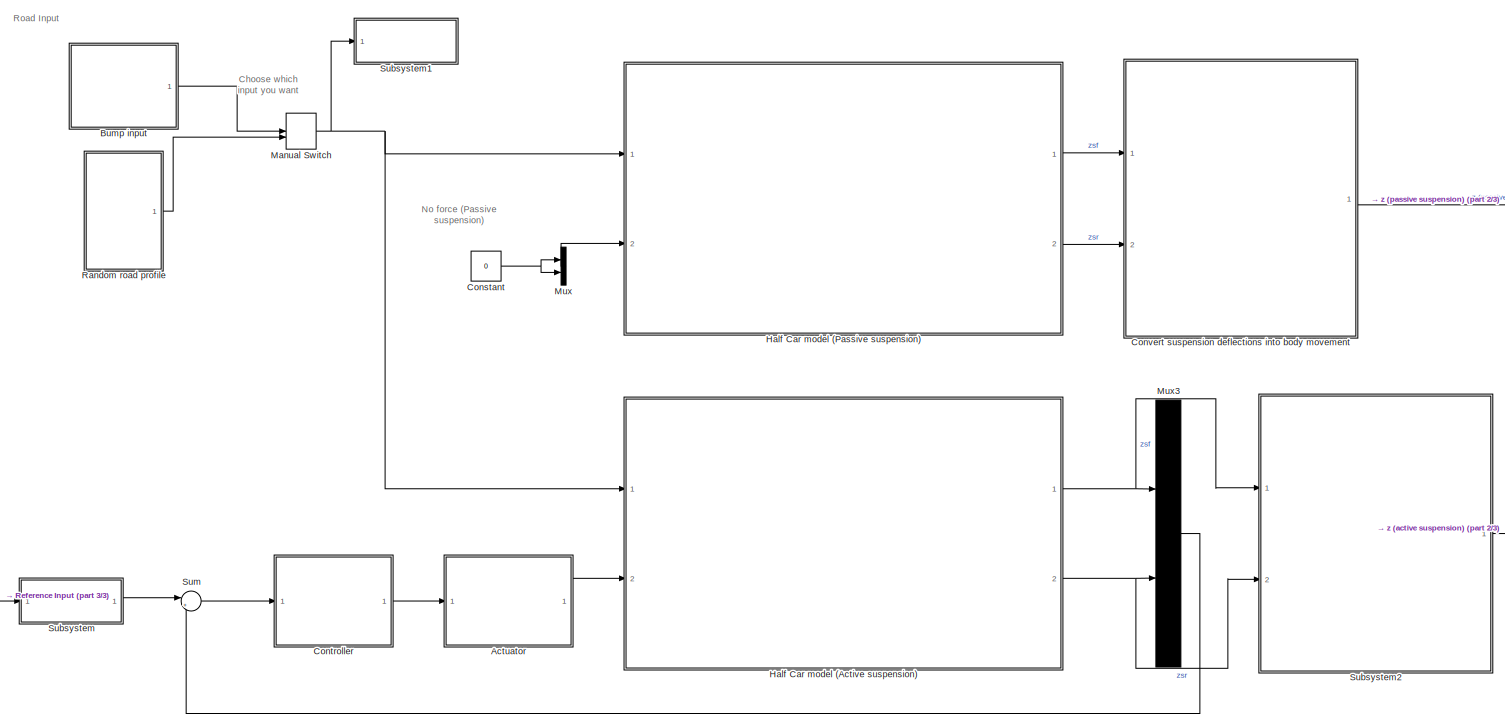
[diagram: root canvas - part 1/3, center side, full height]
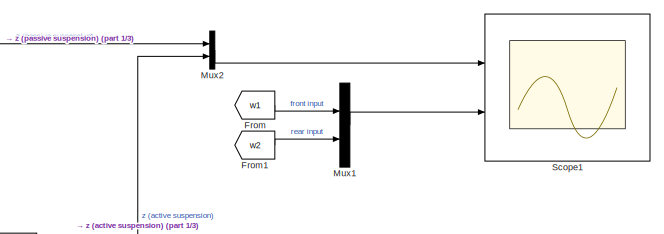
[diagram: root canvas - part 2/3, middle right region]
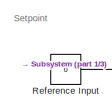
[diagram: root canvas - part 3/3, bottom left region]
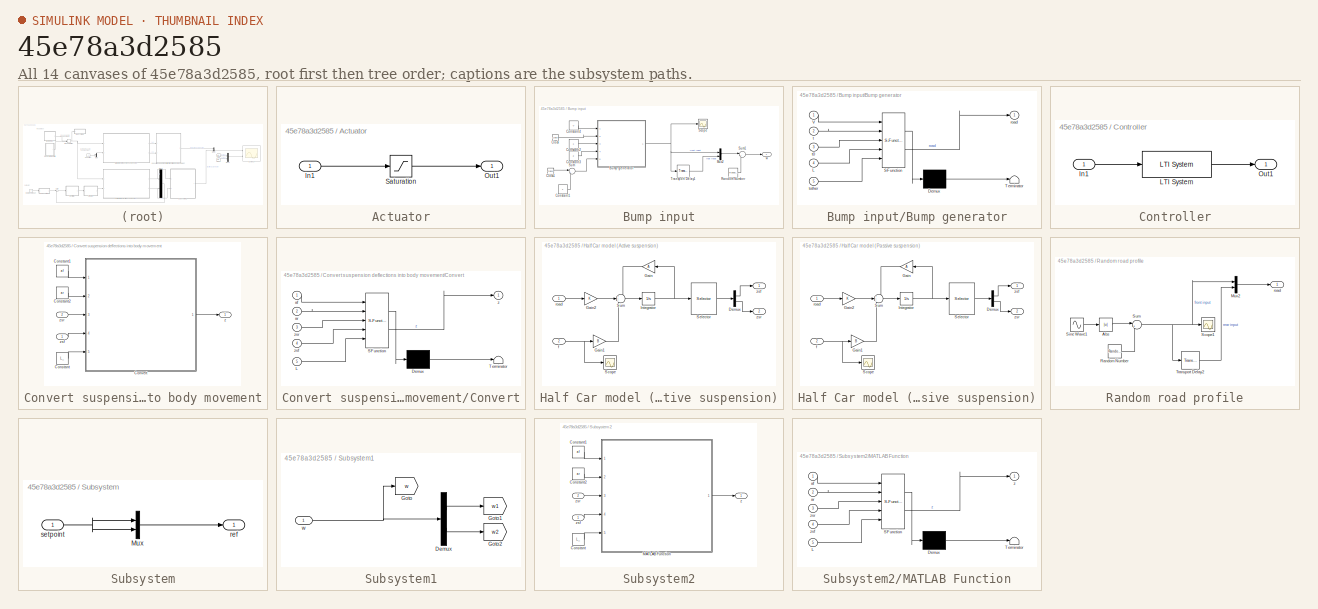
[diagram: thumbnail index - all 14 canvases of the model, root first then tree order]
MODEL slx_45e78a3d2585
KIND model
CONFIG AbsTol = auto
CONFIG EnableMultiTasking = off
CONFIG FixedStep = auto
CONFIG MaxStep = auto
CONFIG MinStep = auto
CONFIG RelTol = 1e-3
CONFIG SampleTimeConstraint = Unconstrained
CONFIG SolverName = VariableStepAuto
CONFIG StartTime = 0.0
CONFIG StopTime = 10
BLOCK [SubSystem] Actuator
  Ports = [1, 1]
  RequestExecContextInheritance = off
BLOCK [Inport] Actuator/In1
BLOCK [Outport] Actuator/Out1
BLOCK [Saturate] Actuator/Saturation
  LowerLimit = -inf
  UpperLimit = inf
BLOCK [SubSystem] Bump input
  Ports = [0, 1]
  RequestExecContextInheritance = off
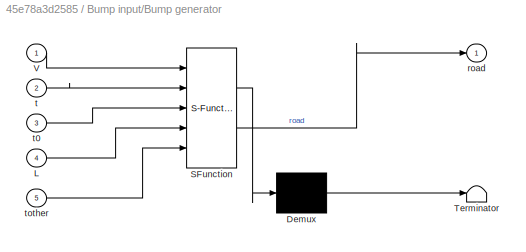
BLOCK [SubSystem] Bump input/Bump generator
  ErrorFcn = Stateflow.Translate.translate
  PermitHierarchicalResolution = ExplicitOnly
  Ports = [5, 1]
  RequestExecContextInheritance = off
  SFBlockType = MATLAB Function
  TreatAsAtomicUnit = on
BLOCK [Demux] Bump input/Bump generator/ Demux 
  Outputs = 1
  Ports = [1, 1]
BLOCK [S-Function] Bump input/Bump generator/ SFunction 
  EnableBusSupport = on
  FunctionName = sf_sfun
  PortCounts = [5 2]
  Ports = [5, 2]
  SFcnIsStateOwnerBlock = off
  SFunctionDeploymentMode = off
  Tag = Stateflow S-Function 2
BLOCK [Terminator] Bump input/Bump generator/ Terminator 
BLOCK [Inport] Bump input/Bump generator/L
  Port = 4
BLOCK [Inport] Bump input/Bump generator/V
BLOCK [Outport] Bump input/Bump generator/road
BLOCK [Inport] Bump input/Bump generator/t
  Port = 2
BLOCK [Inport] Bump input/Bump generator/t0
  Port = 3
BLOCK [Inport] Bump input/Bump generator/tother
  Port = 5
BLOCK [Clock] Bump input/Clock
BLOCK [Clock] Bump input/Clock1
BLOCK [Constant] Bump input/Constant1
BLOCK [Constant] Bump input/Constant2
BLOCK [Constant] Bump input/Constant3
  Value = 2
BLOCK [Constant] Bump input/Constant4
  Value = V
BLOCK [Mux] Bump input/Mux2
  DisplayOption = bar
  Inputs = 2
  Ports = [2, 1]
BLOCK [RandomNumber] Bump input/Random Number
  Commented = on
  SampleTime = 0.1
  Variance = 0.0001
BLOCK [Scope] Bump input/Scope
  Floating = off
  NumInputPorts = 1
  Ports = [1]
  ScopeSpecificationString = Simulink.scopes.TimeScopeBlockCfg('CurrentConfiguration', extmgr.ConfigurationSet(extmgr.Configuration('Core','General UI',true),extmgr.Configuration('Core','Source UI',true),extmgr.Configuration('Sources','WiredSimulink',true,'DataLoggingVariableName','ScopeData1'),extmgr.Configuration('Visuals','Time Domain',true,'SerializedDisplays',{struct('MinYLimReal','-0.0375','MaxYLimReal','0.3375','YLabel...<+1460ch>
BLOCK [Sum] Bump input/Sum
  Inputs = |+-
  Ports = [2, 1]
BLOCK [Sum] Bump input/Sum1
  Inputs = |++
  Ports = [2, 1]
BLOCK [TransportDelay] Bump input/Transport Delay1
  DelayTime = dt
  Ports = [1, 1]
BLOCK [Outport] Bump input/w
BLOCK [Constant] Constant
  Value = 0
BLOCK [SubSystem] Controller
  Ports = [1, 1]
  RequestExecContextInheritance = off
BLOCK [Inport] Controller/In1
BLOCK [Reference] Controller/LTI System  REF=cstblocks/LTI System
  Ports = [1, 1]
  SourceBlock = cstblocks/LTI System
  SourceProductBaseCode = CT
  SourceType = LTI Block
BLOCK [Outport] Controller/Out1
BLOCK [SubSystem] Convert suspension deflections into body movement
  Ports = [2, 1]
  RequestExecContextInheritance = off
BLOCK [Constant] Convert suspension deflections into body movement/Constant
  Value = L_
BLOCK [Constant] Convert suspension deflections into body movement/Constant1
  Value = af
BLOCK [Constant] Convert suspension deflections into body movement/Constant2
  Value = ar
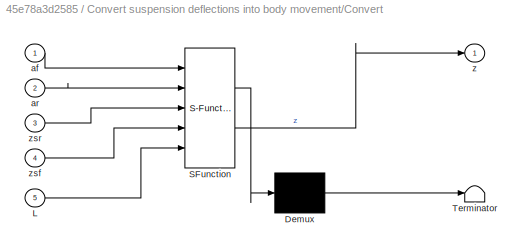
BLOCK [SubSystem] Convert suspension deflections into body movement/Convert
  ErrorFcn = Stateflow.Translate.translate
  PermitHierarchicalResolution = ExplicitOnly
  Ports = [5, 1]
  RequestExecContextInheritance = off
  SFBlockType = MATLAB Function
  TreatAsAtomicUnit = on
BLOCK [Demux] Convert suspension deflections into body movement/Convert/ Demux 
  Outputs = 1
  Ports = [1, 1]
BLOCK [S-Function] Convert suspension deflections into body movement/Convert/ SFunction 
  EnableBusSupport = on
  FunctionName = sf_sfun
  PortCounts = [5 2]
  Ports = [5, 2]
  SFcnIsStateOwnerBlock = off
  SFunctionDeploymentMode = off
  Tag = Stateflow S-Function 1
BLOCK [Terminator] Convert suspension deflections into body movement/Convert/ Terminator 
BLOCK [Inport] Convert suspension deflections into body movement/Convert/L
  Port = 5
BLOCK [Inport] Convert suspension deflections into body movement/Convert/af
BLOCK [Inport] Convert suspension deflections into body movement/Convert/ar
  Port = 2
BLOCK [Outport] Convert suspension deflections into body movement/Convert/z
BLOCK [Inport] Convert suspension deflections into body movement/Convert/zsf
  Port = 4
BLOCK [Inport] Convert suspension deflections into body movement/Convert/zsr
  Port = 3
BLOCK [Outport] Convert suspension deflections into body movement/z
BLOCK [Inport] Convert suspension deflections into body movement/zsf
BLOCK [Inport] Convert suspension deflections into body movement/zsr
  Port = 2
BLOCK [From] From
  GotoTag = w1
  TagVisibility = global
BLOCK [From] From1
  GotoTag = w2
  TagVisibility = global
BLOCK [SubSystem] Half Car model (Active suspension)
  Ports = [2, 2]
  RequestExecContextInheritance = off
BLOCK [Demux] Half Car model (Active suspension)/Demux
  Outputs = 2
  Ports = [1, 2]
BLOCK [Gain] Half Car model (Active suspension)/Gain
  Gain = A
  Multiplication = Matrix(K*u)
BLOCK [Gain] Half Car model (Active suspension)/Gain1
  Gain = B
  Multiplication = Matrix(K*u)
BLOCK [Gain] Half Car model (Active suspension)/Gain2
  Gain = K
  Multiplication = Matrix(K*u)
BLOCK [Integrator] Half Car model (Active suspension)/Integrator
  Ports = [1, 1]
BLOCK [Scope] Half Car model (Active suspension)/Scope
  Floating = off
  NumInputPorts = 1
  Ports = [1]
  ScopeSpecificationString = Simulink.scopes.TimeScopeBlockCfg('CurrentConfiguration', extmgr.ConfigurationSet(extmgr.Configuration('Core','General UI',true),extmgr.Configuration('Core','Source UI',true),extmgr.Configuration('Sources','WiredSimulink',true,'DataLoggingVariableName','ScopeData3'),extmgr.Configuration('Visuals','Time Domain',true,'SerializedDisplays',{struct('MinYLimReal','-7291.78049','MaxYLimReal','1236.16233'...<+1390ch>
BLOCK [Selector] Half Car model (Active suspension)/Selector
  IndexOptions = Index vector (dialog)
  Indices = [5 7]
  InputPortWidth = 8
  OutputSizes = 1
  Ports = [1, 1]
BLOCK [Sum] Half Car model (Active suspension)/Sum
  Inputs = +++
  Ports = [3, 1]
BLOCK [Inport] Half Car model (Active suspension)/f
  Port = 2
BLOCK [Inport] Half Car model (Active suspension)/road
BLOCK [Outport] Half Car model (Active suspension)/zsf
BLOCK [Outport] Half Car model (Active suspension)/zsr
  Port = 2
BLOCK [SubSystem] Half Car model (Passive suspension)
  Ports = [2, 2]
  RequestExecContextInheritance = off
BLOCK [Demux] Half Car model (Passive suspension)/Demux
  Outputs = 2
  Ports = [1, 2]
BLOCK [Gain] Half Car model (Passive suspension)/Gain
  Gain = A
  Multiplication = Matrix(K*u)
BLOCK [Gain] Half Car model (Passive suspension)/Gain1
  Gain = B
  Multiplication = Matrix(K*u)
BLOCK [Gain] Half Car model (Passive suspension)/Gain2
  Gain = K
  Multiplication = Matrix(K*u)
BLOCK [Integrator] Half Car model (Passive suspension)/Integrator
  Ports = [1, 1]
BLOCK [Scope] Half Car model (Passive suspension)/Scope
  Floating = off
  NumInputPorts = 1
  Ports = [1]
  ScopeSpecificationString = Simulink.scopes.TimeScopeBlockCfg('CurrentConfiguration', extmgr.ConfigurationSet(extmgr.Configuration('Core','General UI',true),extmgr.Configuration('Core','Source UI',true),extmgr.Configuration('Sources','WiredSimulink',true,'DataLoggingVariableName','ScopeData3'),extmgr.Configuration('Visuals','Time Domain',true,'SerializedDisplays',{struct('MinYLimReal','-7291.78049','MaxYLimReal','1236.16233'...<+1390ch>
BLOCK [Selector] Half Car model (Passive suspension)/Selector
  IndexOptions = Index vector (dialog)
  Indices = [5 7]
  InputPortWidth = 8
  OutputSizes = 1
  Ports = [1, 1]
BLOCK [Sum] Half Car model (Passive suspension)/Sum
  Inputs = +++
  Ports = [3, 1]
BLOCK [Inport] Half Car model (Passive suspension)/f
  Port = 2
BLOCK [Inport] Half Car model (Passive suspension)/road
BLOCK [Outport] Half Car model (Passive suspension)/zsf
BLOCK [Outport] Half Car model (Passive suspension)/zsr
  Port = 2
BLOCK [ManualSwitch] Manual Switch
BLOCK [Mux] Mux
  DisplayOption = bar
  Inputs = 2
  Ports = [2, 1]
BLOCK [Mux] Mux1
  DisplayOption = bar
  Inputs = 2
  Ports = [2, 1]
BLOCK [Mux] Mux2
  DisplayOption = bar
  Inputs = 2
  Ports = [2, 1]
BLOCK [Mux] Mux3
  DisplayOption = bar
  Inputs = 2
  Ports = [2, 1]
BLOCK [SubSystem] Random road profile
  Ports = [0, 1]
  RequestExecContextInheritance = off
BLOCK [Abs] Random road profile/Abs
  SaturateOnIntegerOverflow = off
BLOCK [Mux] Random road profile/Mux2
  DisplayOption = bar
  Inputs = 2
  Ports = [2, 1]
BLOCK [RandomNumber] Random road profile/Random Number
  SampleTime = 0.01
  Variance = .0001
BLOCK [Scope] Random road profile/Scope1
  Floating = off
  NumInputPorts = 1
  Ports = [1]
  ScopeSpecificationString = Simulink.scopes.TimeScopeBlockCfg('CurrentConfiguration', extmgr.ConfigurationSet(extmgr.Configuration('Core','General UI',true),extmgr.Configuration('Core','Source UI',true),extmgr.Configuration('Sources','WiredSimulink',true,'DataLoggingVariableName','ScopeData1'),extmgr.Configuration('Visuals','Time Domain',true,'SerializedDisplays',{struct('MinYLimReal','-0.03582','MaxYLimReal','0.4','YLabelRe...<+1475ch>
BLOCK [Sin] Random road profile/Sine Wave1
  Amplitude = .05
  Frequency = 5
  Ports = [0, 1]
  SampleTime = 0
BLOCK [Sum] Random road profile/Sum
  Inputs = |++
  Ports = [2, 1]
BLOCK [TransportDelay] Random road profile/Transport Delay2
  DelayTime = dt
  Ports = [1, 1]
BLOCK [Outport] Random road profile/road
BLOCK [Constant] Reference Input
  Value = 0
BLOCK [Scope] Scope1
  Floating = off
  NumInputPorts = 2
  Ports = [2]
  ScopeSpecificationString = Simulink.scopes.TimeScopeBlockCfg('CurrentConfiguration', extmgr.ConfigurationSet(extmgr.Configuration('Core','General UI',true),extmgr.Configuration('Core','Source UI',true),extmgr.Configuration('Sources','WiredSimulink',true,'DataLoggingVariableName','ScopeData1'),extmgr.Configuration('Visuals','Time Domain',true,'SerializedDisplays',{struct('MinYLimReal','-0.09392','MaxYLimReal','0.24051','YLab...<+2865ch>
BLOCK [SubSystem] Subsystem
  Ports = [1, 1]
  RequestExecContextInheritance = off
BLOCK [Mux] Subsystem/Mux
  DisplayOption = bar
  Inputs = 2
  Ports = [2, 1]
BLOCK [Outport] Subsystem/ref
BLOCK [Inport] Subsystem/setpoint
BLOCK [SubSystem] Subsystem1
  Ports = [1]
  RequestExecContextInheritance = off
BLOCK [Demux] Subsystem1/Demux
  Outputs = 2
  Ports = [1, 2]
BLOCK [Goto] Subsystem1/Goto
  GotoTag = w
  TagVisibility = global
BLOCK [Goto] Subsystem1/Goto1
  GotoTag = w1
  TagVisibility = global
BLOCK [Goto] Subsystem1/Goto2
  GotoTag = w2
  TagVisibility = global
BLOCK [Inport] Subsystem1/w
BLOCK [SubSystem] Subsystem2
  Ports = [2, 1]
  RequestExecContextInheritance = off
BLOCK [Constant] Subsystem2/Constant
  Value = L_
BLOCK [Constant] Subsystem2/Constant1
  Value = af
BLOCK [Constant] Subsystem2/Constant2
  Value = ar
BLOCK [SubSystem] Subsystem2/MATLAB Function
  ErrorFcn = Stateflow.Translate.translate
  PermitHierarchicalResolution = ExplicitOnly
  Ports = [5, 1]
  RequestExecContextInheritance = off
  SFBlockType = MATLAB Function
  TreatAsAtomicUnit = on
BLOCK [Demux] Subsystem2/MATLAB Function/ Demux 
  Outputs = 1
  Ports = [1, 1]
BLOCK [S-Function] Subsystem2/MATLAB Function/ SFunction 
  EnableBusSupport = on
  FunctionName = sf_sfun
  PortCounts = [5 2]
  Ports = [5, 2]
  SFcnIsStateOwnerBlock = off
  SFunctionDeploymentMode = off
  Tag = Stateflow S-Function 3
BLOCK [Terminator] Subsystem2/MATLAB Function/ Terminator 
BLOCK [Inport] Subsystem2/MATLAB Function/L
  Port = 5
BLOCK [Inport] Subsystem2/MATLAB Function/af
BLOCK [Inport] Subsystem2/MATLAB Function/ar
  Port = 2
BLOCK [Outport] Subsystem2/MATLAB Function/z
BLOCK [Inport] Subsystem2/MATLAB Function/zsf
  Port = 4
BLOCK [Inport] Subsystem2/MATLAB Function/zsr
  Port = 3
BLOCK [Outport] Subsystem2/z
BLOCK [Inport] Subsystem2/zsf
BLOCK [Inport] Subsystem2/zsr
  Port = 2
BLOCK [Sum] Sum
  Inputs = |+-
  Ports = [2, 1]
ANNOTATION (root): Choose which input you want
ANNOTATION (root): No force (Passive suspension)
ANNOTATION (root): Road Input
ANNOTATION (root): Setpoint
LINE Actuator/In1:1 -> Actuator/Saturation:1
LINE Actuator/Saturation:1 -> Actuator/Out1:1
LINE Actuator:1 -> Half Car model (Active suspension):2
NET Bump input/Bump generator:1 -> Bump input/Mux2:1, Bump input/Scope:1, Bump input/Transport Delay1:1
LINE Bump input/Clock1:1 -> Bump input/Sum:1
LINE Bump input/Clock:1 -> Bump input/Bump generator:2
LINE Bump input/Constant1:1 -> Bump input/Sum:2
LINE Bump input/Constant2:1 -> Bump input/Bump generator:3
LINE Bump input/Constant3:1 -> Bump input/Bump generator:4
LINE Bump input/Constant4:1 -> Bump input/Bump generator:1
LINE Bump input/Mux2:1 -> Bump input/Sum1:1
LINE Bump input/Random Number:1 -> Bump input/Sum1:2
LINE Bump input/Sum1:1 -> Bump input/w:1
LINE Bump input/Sum:1 -> Bump input/Bump generator:5
LINE Bump input/Transport Delay1:1 -> Bump input/Mux2:2
LINE Bump input:1 -> Manual Switch:1
NET Constant:1 -> Mux:1, Mux:2
LINE Controller/In1:1 -> Controller/LTI System:1
LINE Controller/LTI System:1 -> Controller/Out1:1
LINE Controller:1 -> Actuator:1
LINE Convert suspension deflections into body movement/Constant1:1 -> Convert suspension deflections into body movement/Convert:1
LINE Convert suspension deflections into body movement/Constant2:1 -> Convert suspension deflections into body movement/Convert:2
LINE Convert suspension deflections into body movement/Constant:1 -> Convert suspension deflections into body movement/Convert:5
LINE Convert suspension deflections into body movement/Convert:1 -> Convert suspension deflections into body movement/z:1
LINE Convert suspension deflections into body movement/zsf:1 -> Convert suspension deflections into body movement/Convert:4
LINE Convert suspension deflections into body movement/zsr:1 -> Convert suspension deflections into body movement/Convert:3
LINE Convert suspension deflections into body movement:1 -> Mux2:1
LINE From1:1 -> Mux1:2
LINE From:1 -> Mux1:1
LINE Half Car model (Active suspension)/Demux:1 -> Half Car model (Active suspension)/zsf:1
LINE Half Car model (Active suspension)/Demux:2 -> Half Car model (Active suspension)/zsr:1
LINE Half Car model (Active suspension)/Gain1:1 -> Half Car model (Active suspension)/Sum:3
LINE Half Car model (Active suspension)/Gain2:1 -> Half Car model (Active suspension)/Sum:2
LINE Half Car model (Active suspension)/Gain:1 -> Half Car model (Active suspension)/Sum:1
NET Half Car model (Active suspension)/Integrator:1 -> Half Car model (Active suspension)/Gain:1, Half Car model (Active suspension)/Selector:1
LINE Half Car model (Active suspension)/Selector:1 -> Half Car model (Active suspension)/Demux:1
LINE Half Car model (Active suspension)/Sum:1 -> Half Car model (Active suspension)/Integrator:1
NET Half Car model (Active suspension)/f:1 -> Half Car model (Active suspension)/Gain1:1, Half Car model (Active suspension)/Scope:1
LINE Half Car model (Active suspension)/road:1 -> Half Car model (Active suspension)/Gain2:1
NET Half Car model (Active suspension):1 -> Mux3:1, Subsystem2:1
NET Half Car model (Active suspension):2 -> Mux3:2, Subsystem2:2
LINE Half Car model (Passive suspension)/Demux:1 -> Half Car model (Passive suspension)/zsf:1
LINE Half Car model (Passive suspension)/Demux:2 -> Half Car model (Passive suspension)/zsr:1
LINE Half Car model (Passive suspension)/Gain1:1 -> Half Car model (Passive suspension)/Sum:3
LINE Half Car model (Passive suspension)/Gain2:1 -> Half Car model (Passive suspension)/Sum:2
LINE Half Car model (Passive suspension)/Gain:1 -> Half Car model (Passive suspension)/Sum:1
NET Half Car model (Passive suspension)/Integrator:1 -> Half Car model (Passive suspension)/Gain:1, Half Car model (Passive suspension)/Selector:1
LINE Half Car model (Passive suspension)/Selector:1 -> Half Car model (Passive suspension)/Demux:1
LINE Half Car model (Passive suspension)/Sum:1 -> Half Car model (Passive suspension)/Integrator:1
NET Half Car model (Passive suspension)/f:1 -> Half Car model (Passive suspension)/Gain1:1, Half Car model (Passive suspension)/Scope:1
LINE Half Car model (Passive suspension)/road:1 -> Half Car model (Passive suspension)/Gain2:1
LINE Half Car model (Passive suspension):1 -> Convert suspension deflections into body movement:1
LINE Half Car model (Passive suspension):2 -> Convert suspension deflections into body movement:2
NET Manual Switch:1 -> Half Car model (Active suspension):1, Half Car model (Passive suspension):1, Subsystem1:1
LINE Mux1:1 -> Scope1:2
LINE Mux2:1 -> Scope1:1
LINE Mux3:1 -> Sum:2
LINE Mux:1 -> Half Car model (Passive suspension):2
LINE Random road profile/Abs:1 -> Random road profile/Sum:1
LINE Random road profile/Mux2:1 -> Random road profile/road:1
LINE Random road profile/Random Number:1 -> Random road profile/Sum:2
LINE Random road profile/Sine Wave1:1 -> Random road profile/Abs:1
NET Random road profile/Sum:1 -> Random road profile/Mux2:1, Random road profile/Scope1:1, Random road profile/Transport Delay2:1
LINE Random road profile/Transport Delay2:1 -> Random road profile/Mux2:2
LINE Random road profile:1 -> Manual Switch:2
LINE Reference Input:1 -> Subsystem:1
LINE Subsystem/Mux:1 -> Subsystem/ref:1
NET Subsystem/setpoint:1 -> Subsystem/Mux:1, Subsystem/Mux:2
LINE Subsystem1/Demux:1 -> Subsystem1/Goto1:1
LINE Subsystem1/Demux:2 -> Subsystem1/Goto2:1
NET Subsystem1/w:1 -> Subsystem1/Demux:1, Subsystem1/Goto:1
LINE Subsystem2/Constant1:1 -> Subsystem2/MATLAB Function:1
LINE Subsystem2/Constant2:1 -> Subsystem2/MATLAB Function:2
LINE Subsystem2/Constant:1 -> Subsystem2/MATLAB Function:5
LINE Subsystem2/MATLAB Function:1 -> Subsystem2/z:1
LINE Subsystem2/zsf:1 -> Subsystem2/MATLAB Function:4
LINE Subsystem2/zsr:1 -> Subsystem2/MATLAB Function:3
LINE Subsystem2:1 -> Mux2:2
LINE Subsystem:1 -> Sum:1
LINE Sum:1 -> Controller:1
note: NET lines group one-source signal fan-out (src -> all destinations, sorted); 1:1 wires keep LINE
CHART Convert suspension deflections
into body movement/Convert states=1 transitions=1
  STATE_LABEL 'eML_blk_kernel()'
  STATE_LABEL 'SCRIPT:\nfunction z = zsrzsf2z(af, ar, zsr, zsf, L)\n\nz = (af*zsr+ar*zsf)/L;\n\nend\n'
CHART Bump input/Bump generator states=1 transitions=1
  STATE_LABEL 'eML_blk_kernel()'
  STATE_LABEL 'SCRIPT:\nfunction road = fcn(V, t, t0, L, tother)\n\n\nif t>t0 && t<=t0+L/V\n        road = -1/2*0.30*(cos(2*pi*V*tother/L)-1);\nelse \n    road = 0;\nend\n\nend'
CHART Subsystem2/MATLAB Function states=1 transitions=1
  STATE_LABEL 'eML_blk_kernel()'
  STATE_LABEL 'SCRIPT:\nfunction z = zsrzsf2z(af, ar, zsr, zsf, L)\n\nz = (af*zsr+ar*zsf)/L;\n\nend\n'
CHART  states=0 transitions=0
CHART  states=0 transitions=0
CHART  states=0 transitions=0
